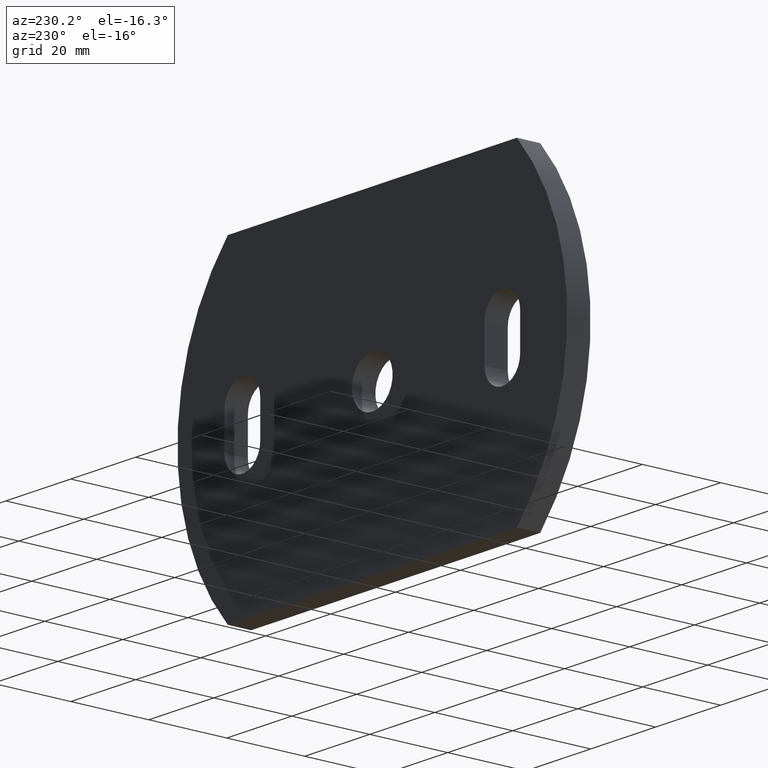
[diagram: clean part render]
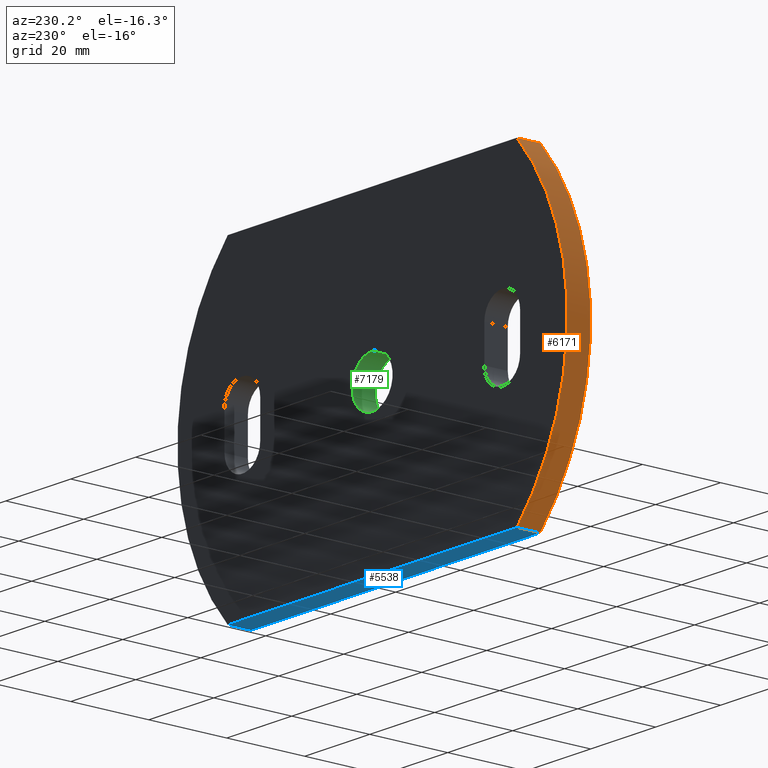
[diagram: same view with three faces highlighted in distinct colors, each labeled with its STEP entity id]
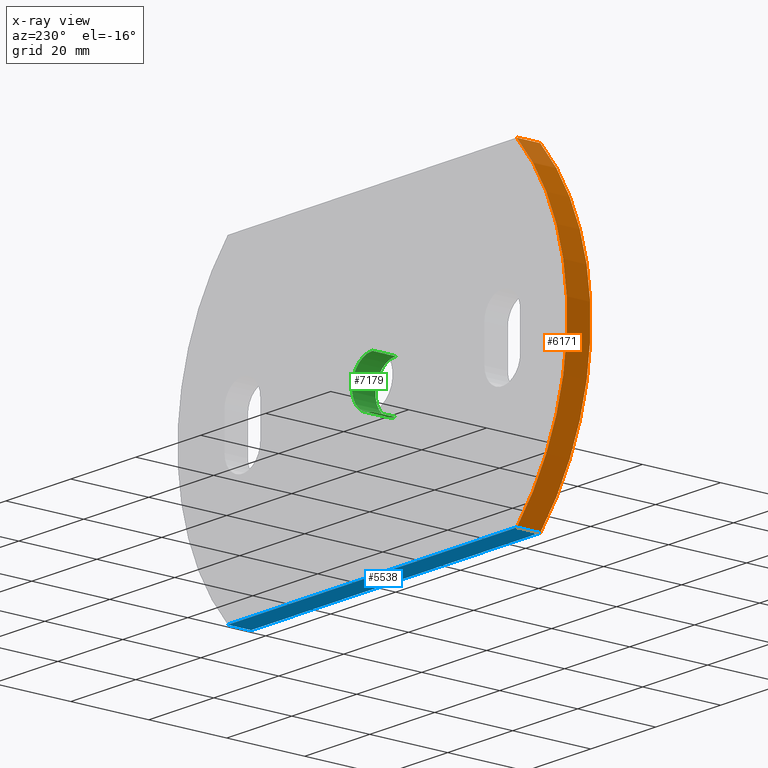
[diagram: x-ray of the same camera — body ghosted, the three highlighted faces saturated]
A machine part, auxiliary view with three faces highlighted in distinct colors.
The next image is the same camera in x-ray (body ghosted, the three faces saturated) — at least one of them is partly hidden behind the body in this view.
Their STEP definitions:

[orange] entity #6171 — the highlighted cylindrical surface (partial cylindrical patch) has radius 59.3629 mm, axis along (-0, -1, -0).
#81 = AXIS2_PLACEMENT_3D ( 'NONE', #7793, #6383, #776 ) ;
#104 = CARTESIAN_POINT ( 'NONE',  ( -0.6370967741935185100, 0.0000000000000000000, 0.0000000000000000000 ) ) ;
#236 = ORIENTED_EDGE ( 'NONE', *, *, #533, .F. ) ;
#520 = EDGE_CURVE ( 'NONE', #5073, #2334, #8822, .T. ) ;
#533 = EDGE_CURVE ( 'NONE', #2334, #553, #2039, .T. ) ;
#553 = VERTEX_POINT ( 'NONE', #1462 ) ;
#776 = DIRECTION ( 'NONE',  ( 0.0000000000000000000, 0.0000000000000000000, -1.000000000000000000 ) ) ;
#1229 = ORIENTED_EDGE ( 'NONE', *, *, #3247, .T. ) ;
#1265 = ORIENTED_EDGE ( 'NONE', *, *, #520, .F. ) ;
#1304 = CARTESIAN_POINT ( 'NONE',  ( -44.50000000000002100, 6.000000000000000000, 39.99999999999999300 ) ) ;
#1307 = VECTOR ( 'NONE', #7864, 1000.000000000000000 ) ;
#1462 = CARTESIAN_POINT ( 'NONE',  ( -44.50000000000002100, 0.0000000000000000000, 39.99999999999999300 ) ) ;
#1564 = DIRECTION ( 'NONE',  ( 0.0000000000000000000, 1.000000000000000000, 0.0000000000000000000 ) ) ;
#1661 = DIRECTION ( 'NONE',  ( 0.0000000000000000000, 0.0000000000000000000, 1.000000000000000000 ) ) ;
#1888 = CARTESIAN_POINT ( 'NONE',  ( -44.49999999999998600, 0.0000000000000000000, -40.00000000000002800 ) ) ;
#2039 = LINE ( 'NONE', #3656, #2264 ) ;
#2264 = VECTOR ( 'NONE', #7307, 1000.000000000000000 ) ;
#2334 = VERTEX_POINT ( 'NONE', #1304 ) ;
#2930 = EDGE_LOOP ( 'NONE', ( #1229, #236, #1265, #7384 ) ) ;
#3247 = EDGE_CURVE ( 'NONE', #9216, #553, #8515, .T. ) ;
#3475 = CARTESIAN_POINT ( 'NONE',  ( -44.49999999999998600, 6.000000000000000000, -40.00000000000002800 ) ) ;
#3656 = CARTESIAN_POINT ( 'NONE',  ( -44.50000000000002100, 6.000000000000000000, 39.99999999999999300 ) ) ;
#3744 = DIRECTION ( 'NONE',  ( 0.0000000000000000000, 0.0000000000000000000, 1.000000000000000000 ) ) ;
#4055 = AXIS2_PLACEMENT_3D ( 'NONE', #7900, #1564, #3744 ) ;
#5073 = VERTEX_POINT ( 'NONE', #8102 ) ;
#5934 = DIRECTION ( 'NONE',  ( 0.0000000000000000000, 1.000000000000000000, 0.0000000000000000000 ) ) ;
#5976 = AXIS2_PLACEMENT_3D ( 'NONE', #104, #5934, #1661 ) ;
#6171 = ADVANCED_FACE ( 'NONE', ( #6365 ), #6921, .T. ) ;
#6365 = FACE_OUTER_BOUND ( 'NONE', #2930, .T. ) ;
#6383 = DIRECTION ( 'NONE',  ( -0.0000000000000000000, -1.000000000000000000, -0.0000000000000000000 ) ) ;
#6921 = CYLINDRICAL_SURFACE ( 'NONE', #81, 59.36290322580647700 ) ;
#7238 = LINE ( 'NONE', #3475, #1307 ) ;
#7307 = DIRECTION ( 'NONE',  ( -0.0000000000000000000, -1.000000000000000000, -0.0000000000000000000 ) ) ;
#7384 = ORIENTED_EDGE ( 'NONE', *, *, #8357, .T. ) ;
#7793 = CARTESIAN_POINT ( 'NONE',  ( -0.6370967741935185100, 6.000000000000000000, 0.0000000000000000000 ) ) ;
#7864 = DIRECTION ( 'NONE',  ( -0.0000000000000000000, -1.000000000000000000, -0.0000000000000000000 ) ) ;
#7900 = CARTESIAN_POINT ( 'NONE',  ( -0.6370967741935185100, 6.000000000000000000, 0.0000000000000000000 ) ) ;
#8102 = CARTESIAN_POINT ( 'NONE',  ( -44.49999999999998600, 6.000000000000000000, -40.00000000000002800 ) ) ;
#8357 = EDGE_CURVE ( 'NONE', #5073, #9216, #7238, .T. ) ;
#8515 = CIRCLE ( 'NONE', #5976, 59.36290322580647700 ) ;
#8822 = CIRCLE ( 'NONE', #4055, 59.36290322580647700 ) ;
#9216 = VERTEX_POINT ( 'NONE', #1888 ) ;

[blue] entity #5538 — the highlighted planar face has unit normal (-0, 0, 1).
#41 = DIRECTION ( 'NONE',  ( -0.0000000000000000000, -1.000000000000000000, -0.0000000000000000000 ) ) ;
#110 = VECTOR ( 'NONE', #5705, 1000.000000000000000 ) ;
#380 = VERTEX_POINT ( 'NONE', #4914 ) ;
#689 = DIRECTION ( 'NONE',  ( 1.000000000000000000, 0.0000000000000000000, 1.559302000878029000E-016 ) ) ;
#1307 = VECTOR ( 'NONE', #7864, 1000.000000000000000 ) ;
#1728 = ORIENTED_EDGE ( 'NONE', *, *, #8357, .F. ) ;
#1825 = ORIENTED_EDGE ( 'NONE', *, *, #7886, .F. ) ;
#1888 = CARTESIAN_POINT ( 'NONE',  ( -44.49999999999998600, 0.0000000000000000000, -40.00000000000002800 ) ) ;
#2556 = CARTESIAN_POINT ( 'NONE',  ( 44.49999999999999300, 0.0000000000000000000, -39.99999999999999300 ) ) ;
#2845 = VECTOR ( 'NONE', #41, 1000.000000000000000 ) ;
#3064 = EDGE_CURVE ( 'NONE', #380, #7663, #7061, .T. ) ;
#3385 = VECTOR ( 'NONE', #5086, 1000.000000000000000 ) ;
#3475 = CARTESIAN_POINT ( 'NONE',  ( -44.49999999999998600, 6.000000000000000000, -40.00000000000002800 ) ) ;
#3582 = DIRECTION ( 'NONE',  ( -1.559302000878029000E-016, 0.0000000000000000000, 1.000000000000000000 ) ) ;
#3666 = ORIENTED_EDGE ( 'NONE', *, *, #3064, .T. ) ;
#4345 = CARTESIAN_POINT ( 'NONE',  ( 44.49999999999999300, 6.000000000000000000, -39.99999999999999300 ) ) ;
#4439 = CARTESIAN_POINT ( 'NONE',  ( -44.50000000000000000, 0.0000000000000000000, -40.00000000000000700 ) ) ;
#4494 = AXIS2_PLACEMENT_3D ( 'NONE', #8542, #3582, #689 ) ;
#4914 = CARTESIAN_POINT ( 'NONE',  ( 44.49999999999999300, 6.000000000000000000, -39.99999999999999300 ) ) ;
#4926 = EDGE_CURVE ( 'NONE', #7663, #9216, #6612, .T. ) ;
#5073 = VERTEX_POINT ( 'NONE', #8102 ) ;
#5086 = DIRECTION ( 'NONE',  ( -1.000000000000000000, -0.0000000000000000000, -1.559302000878029000E-016 ) ) ;
#5538 = ADVANCED_FACE ( 'NONE', ( #7269 ), #7840, .F. ) ;
#5705 = DIRECTION ( 'NONE',  ( -1.000000000000000000, -0.0000000000000000000, -1.559302000878029000E-016 ) ) ;
#6612 = LINE ( 'NONE', #4439, #3385 ) ;
#6717 = ORIENTED_EDGE ( 'NONE', *, *, #4926, .T. ) ;
#6861 = EDGE_LOOP ( 'NONE', ( #6717, #1728, #1825, #3666 ) ) ;
#7061 = LINE ( 'NONE', #4345, #2845 ) ;
#7238 = LINE ( 'NONE', #3475, #1307 ) ;
#7269 = FACE_OUTER_BOUND ( 'NONE', #6861, .T. ) ;
#7568 = LINE ( 'NONE', #8491, #110 ) ;
#7663 = VERTEX_POINT ( 'NONE', #2556 ) ;
#7840 = PLANE ( 'NONE',  #4494 ) ;
#7864 = DIRECTION ( 'NONE',  ( -0.0000000000000000000, -1.000000000000000000, -0.0000000000000000000 ) ) ;
#7886 = EDGE_CURVE ( 'NONE', #380, #5073, #7568, .T. ) ;
#8102 = CARTESIAN_POINT ( 'NONE',  ( -44.49999999999998600, 6.000000000000000000, -40.00000000000002800 ) ) ;
#8357 = EDGE_CURVE ( 'NONE', #5073, #9216, #7238, .T. ) ;
#8491 = CARTESIAN_POINT ( 'NONE',  ( -44.50000000000000000, 6.000000000000000000, -40.00000000000000700 ) ) ;
#8542 = CARTESIAN_POINT ( 'NONE',  ( -44.50000000000000000, 6.000000000000000000, -40.00000000000000700 ) ) ;
#9216 = VERTEX_POINT ( 'NONE', #1888 ) ;

[green] entity #7179 — the highlighted cylindrical surface (edge-blend (fillet) strip) has radius 6.25 mm, axis along (-0, 1, -0).
#111 = DIRECTION ( 'NONE',  ( -0.0000000000000000000, 1.000000000000000000, -0.0000000000000000000 ) ) ;
#1159 = VECTOR ( 'NONE', #6428, 1000.000000000000000 ) ;
#1425 = CARTESIAN_POINT ( 'NONE',  ( 0.0000000000000000000, 6.000000000000000000, 6.250000000000000000 ) ) ;
#1620 = EDGE_CURVE ( 'NONE', #3895, #7686, #2248, .T. ) ;
#1698 = DIRECTION ( 'NONE',  ( 0.0000000000000000000, 1.000000000000000000, 0.0000000000000000000 ) ) ;
#1850 = ORIENTED_EDGE ( 'NONE', *, *, #2728, .T. ) ;
#2125 = CARTESIAN_POINT ( 'NONE',  ( 7.654042494670957600E-016, 0.0000000000000000000, -6.250000000000000000 ) ) ;
#2248 = LINE ( 'NONE', #2125, #3383 ) ;
#2315 = CARTESIAN_POINT ( 'NONE',  ( 0.0000000000000000000, 0.0000000000000000000, 6.250000000000000000 ) ) ;
#2439 = CYLINDRICAL_SURFACE ( 'NONE', #5697, 6.250000000000000000 ) ;
#2527 = VERTEX_POINT ( 'NONE', #2315 ) ;
#2728 = EDGE_CURVE ( 'NONE', #2527, #3061, #3970, .T. ) ;
#3061 = VERTEX_POINT ( 'NONE', #1425 ) ;
#3383 = VECTOR ( 'NONE', #4191, 1000.000000000000000 ) ;
#3679 = DIRECTION ( 'NONE',  ( 0.0000000000000000000, 1.000000000000000000, 0.0000000000000000000 ) ) ;
#3764 = CARTESIAN_POINT ( 'NONE',  ( 0.0000000000000000000, 6.000000000000000000, 0.0000000000000000000 ) ) ;
#3895 = VERTEX_POINT ( 'NONE', #4485 ) ;
#3916 = EDGE_CURVE ( 'NONE', #2527, #3895, #8172, .T. ) ;
#3970 = LINE ( 'NONE', #7249, #1159 ) ;
#4191 = DIRECTION ( 'NONE',  ( -0.0000000000000000000, 1.000000000000000000, -0.0000000000000000000 ) ) ;
#4485 = CARTESIAN_POINT ( 'NONE',  ( 7.654042494670957600E-016, 0.0000000000000000000, -6.250000000000000000 ) ) ;
#4540 = DIRECTION ( 'NONE',  ( 0.0000000000000000000, 0.0000000000000000000, 1.000000000000000000 ) ) ;
#4868 = EDGE_CURVE ( 'NONE', #3061, #7686, #5377, .T. ) ;
#5255 = CARTESIAN_POINT ( 'NONE',  ( 0.0000000000000000000, 0.0000000000000000000, 0.0000000000000000000 ) ) ;
#5377 = CIRCLE ( 'NONE', #8422, 6.250000000000000000 ) ;
#5697 = AXIS2_PLACEMENT_3D ( 'NONE', #6426, #111, #8843 ) ;
#5884 = ORIENTED_EDGE ( 'NONE', *, *, #4868, .T. ) ;
#6064 = ORIENTED_EDGE ( 'NONE', *, *, #1620, .F. ) ;
#6122 = ORIENTED_EDGE ( 'NONE', *, *, #3916, .F. ) ;
#6426 = CARTESIAN_POINT ( 'NONE',  ( 0.0000000000000000000, 0.0000000000000000000, 0.0000000000000000000 ) ) ;
#6428 = DIRECTION ( 'NONE',  ( -0.0000000000000000000, 1.000000000000000000, -0.0000000000000000000 ) ) ;
#6439 = AXIS2_PLACEMENT_3D ( 'NONE', #5255, #1698, #4540 ) ;
#6686 = FACE_OUTER_BOUND ( 'NONE', #8010, .T. ) ;
#7179 = ADVANCED_FACE ( 'NONE', ( #6686 ), #2439, .F. ) ;
#7249 = CARTESIAN_POINT ( 'NONE',  ( 0.0000000000000000000, 0.0000000000000000000, 6.250000000000000000 ) ) ;
#7324 = DIRECTION ( 'NONE',  ( 0.0000000000000000000, 0.0000000000000000000, 1.000000000000000000 ) ) ;
#7686 = VERTEX_POINT ( 'NONE', #8868 ) ;
#8010 = EDGE_LOOP ( 'NONE', ( #6064, #6122, #1850, #5884 ) ) ;
#8172 = CIRCLE ( 'NONE', #6439, 6.250000000000000000 ) ;
#8422 = AXIS2_PLACEMENT_3D ( 'NONE', #3764, #3679, #7324 ) ;
#8843 = DIRECTION ( 'NONE',  ( 0.0000000000000000000, 0.0000000000000000000, 1.000000000000000000 ) ) ;
#8868 = CARTESIAN_POINT ( 'NONE',  ( 7.654042494670957600E-016, 6.000000000000000000, -6.250000000000000000 ) ) ;